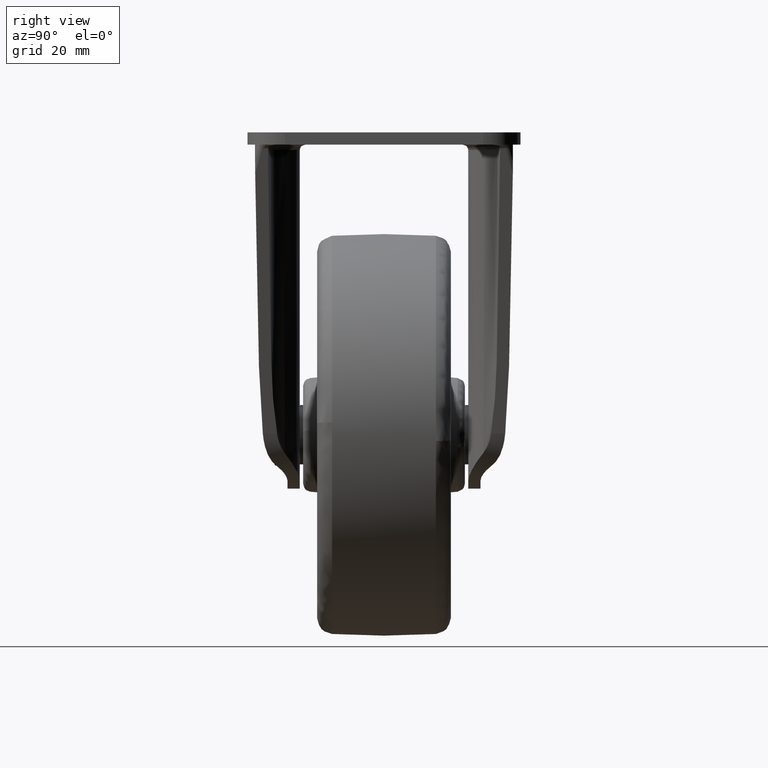
[diagram: clean part render]
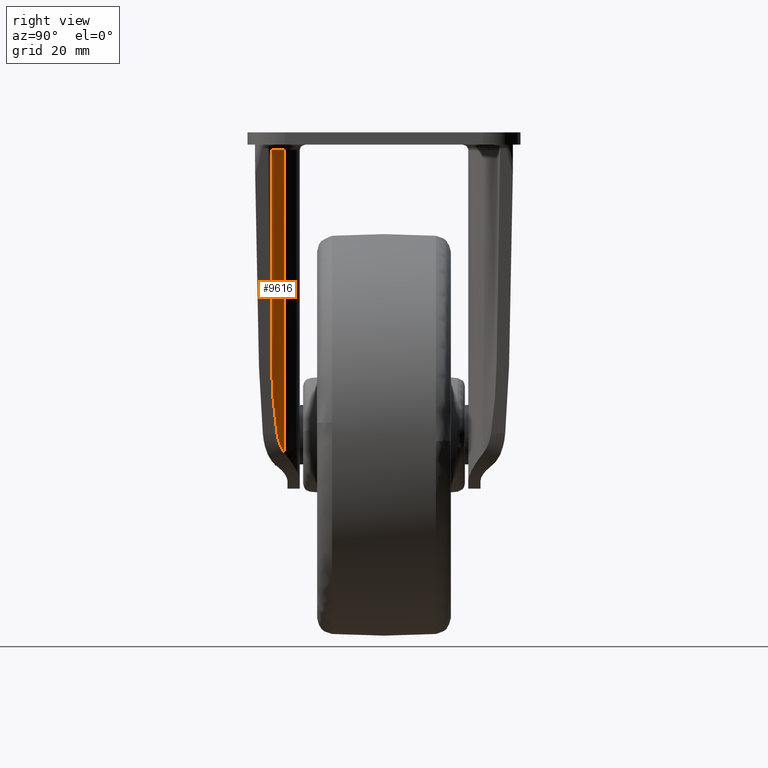
[diagram: same view with one face highlighted and labeled with its STEP entity id]
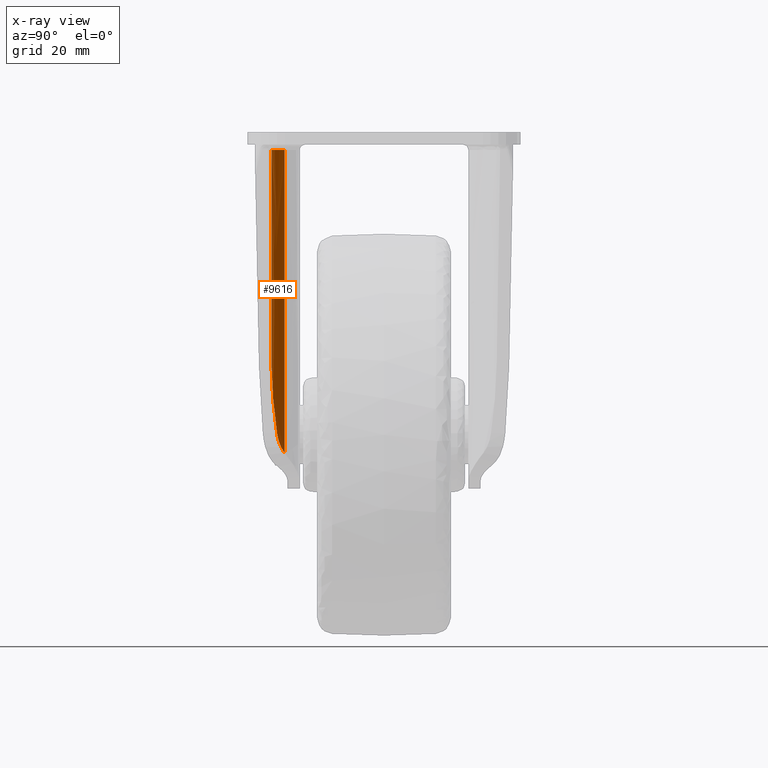
[diagram: x-ray of the same camera — body ghosted, the highlighted face saturated]
A machine part, right view. The second image highlights one B-rep face of the part: STEP entity #9616.
The next image is the same camera in x-ray: the body ghosted, the highlighted face saturated — about 0% of this face is hidden behind the body in this view.
In plain terms, the highlighted face is a freeform B-spline surface patch.
Its self-contained STEP definition (entity closure, byte-faithful):
#8025=CARTESIAN_POINT('',(11.351696789401281,-18.559973133057149,-3.300000000000000));
#8026=VERTEX_POINT('',#8025);
#8089=CARTESIAN_POINT('',(15.571389632507900,-21.067994115533299,-3.300000000000080));
#8090=VERTEX_POINT('',#8089);
#8123=CARTESIAN_POINT('',(11.351696789401270,-18.559973133057149,-3.300000000000000));
#8124=CARTESIAN_POINT('',(12.874182778205196,-20.802205266663485,-3.300000000000000));
#8125=CARTESIAN_POINT('',(15.571389632507900,-21.067994115533299,-3.300000000000080));
#8133=(BOUNDED_CURVE()B_SPLINE_CURVE(2,(#8123,#8124,#8125),.UNSPECIFIED.,.F.,.U.)CURVE()GEOMETRIC_REPRESENTATION_ITEM()QUASI_UNIFORM_CURVE()RATIONAL_B_SPLINE_CURVE((1.0,0.905585721787063,1.0))REPRESENTATION_ITEM(''));
#8134=EDGE_CURVE('',#8026,#8090,#8133,.T.);
#9210=CARTESIAN_POINT('',(12.723144108426000,-19.980183923574401,-56.218632483061398));
#9211=VERTEX_POINT('',#9210);
#9217=CARTESIAN_POINT('',(15.571389632507900,-21.067994115533299,-42.639158120802449));
#9218=VERTEX_POINT('',#9217);
#9219=CARTESIAN_POINT('',(12.723144108425950,-19.980183923574369,-56.218632483061413));
#9220=CARTESIAN_POINT('',(13.998725142697195,-20.913020208456579,-50.137092178542446));
#9221=CARTESIAN_POINT('',(15.571389632507900,-21.067994115533299,-42.639158120802449));
#9229=(BOUNDED_CURVE()B_SPLINE_CURVE(2,(#9219,#9220,#9221),.UNSPECIFIED.,.F.,.U.)CURVE()GEOMETRIC_REPRESENTATION_ITEM()QUASI_UNIFORM_CURVE()RATIONAL_B_SPLINE_CURVE((1.0,0.964671928667058,1.0))REPRESENTATION_ITEM(''));
#9230=EDGE_CURVE('',#9211,#9218,#9229,.T.);
#9333=CARTESIAN_POINT('',(11.351697890259061,-18.559972385569651,-59.885530280055313));
#9334=VERTEX_POINT('',#9333);
#9362=CARTESIAN_POINT('',(11.351697890259061,-18.559972385569651,-59.885530280055313));
#9363=CARTESIAN_POINT('',(11.490600934891610,-18.764541124871979,-59.636650579441927));
#9364=CARTESIAN_POINT('',(11.629913658600360,-18.941910098012031,-59.367716740033707));
#9365=CARTESIAN_POINT('',(11.798688382767001,-19.136773728423329,-59.008684821643122));
#9366=CARTESIAN_POINT('',(11.832236978604669,-19.174450588794642,-58.935598493782912));
#9367=CARTESIAN_POINT('',(11.898178704198511,-19.246689666673181,-58.788305734395443));
#9368=CARTESIAN_POINT('',(11.930621815659579,-19.281313115170828,-58.713999265190623));
#9369=CARTESIAN_POINT('',(12.026265411890961,-19.381046670882121,-58.489176425332218));
#9370=CARTESIAN_POINT('',(12.087777728492840,-19.442031554926931,-58.336759476606566));
#9371=CARTESIAN_POINT('',(12.264854033481731,-19.610790142107991,-57.872397754249342));
#9372=CARTESIAN_POINT('',(12.372940865698050,-19.704482739683861,-57.553373111335183));
#9373=CARTESIAN_POINT('',(12.517807233870551,-19.823288811842399,-57.061931667116802));
#9374=CARTESIAN_POINT('',(12.563224092183409,-19.859236342909789,-56.895958632732253));
#9375=CARTESIAN_POINT('',(12.647966375792951,-19.924576468869031,-56.559814845164567));
#9376=CARTESIAN_POINT('',(12.687257632098040,-19.953939952681250,-56.389727166137838));
#9377=CARTESIAN_POINT('',(12.723144108426000,-19.980183923574401,-56.218632483061398));
#9378=B_SPLINE_CURVE_WITH_KNOTS('',3,(#9362,#9363,#9364,#9365,#9366,#9367,#9368,#9369,#9370,#9371,#9372,#9373,#9374,#9375,#9376,#9377),.UNSPECIFIED.,.F.,.U.,(4,2,2,2,2,2,2,4),(0.0,0.250000000000007,0.312500000000006,0.375000000000005,0.500000000000003,0.749999999999999,0.875000000000000,1.0),.UNSPECIFIED.);
#9379=EDGE_CURVE('',#9334,#9211,#9378,.T.);
#9582=CARTESIAN_POINT('',(11.351697890259061,-18.559972385569651,-59.885530280055313));
#9583=CARTESIAN_POINT('',(11.351696789401281,-18.559973133057149,-3.300000000000000));
#9584=QUASI_UNIFORM_CURVE('',1,(#9582,#9583),.UNSPECIFIED.,.F.,.U.);
#9585=EDGE_CURVE('',#9334,#8026,#9584,.T.);
#9591=CARTESIAN_POINT('',(15.814253760482430,-21.086774501869705,-61.300168537056685));
#9592=CARTESIAN_POINT('',(15.814253760482430,-21.086774501869705,-1.849995786573579));
#9593=CARTESIAN_POINT('',(12.805012711239977,-20.917702521194624,-61.300168537056692));
#9594=CARTESIAN_POINT('',(12.805012711239977,-20.917702521194624,-1.849995786573579));
#9595=CARTESIAN_POINT('',(11.218713646729665,-18.354935987733374,-61.300168537056692));
#9596=CARTESIAN_POINT('',(11.218713646729665,-18.354935987733374,-1.849995786573579));
#9604=(BOUNDED_SURFACE()B_SPLINE_SURFACE(1,2,((#9591,#9593,#9595),(#9592,#9594,#9596)),.UNSPECIFIED.,.F.,.F.,.U.)B_SPLINE_SURFACE_WITH_KNOTS((2,2),(3,3),(0.0,59.450172750483112),(0.0,5.666653614815152),.UNSPECIFIED.)GEOMETRIC_REPRESENTATION_ITEM()RATIONAL_B_SPLINE_SURFACE(((0.999618390021001,0.885053335893106,0.996221248780699),(0.999618390021001,0.885053335893106,0.996221248780699)))REPRESENTATION_ITEM('')SURFACE());
#9605=ORIENTED_EDGE('',*,*,#9585,.T.);
#9606=ORIENTED_EDGE('',*,*,#8134,.T.);
#9607=CARTESIAN_POINT('',(15.571389632507900,-21.067994115533299,-42.639158120802449));
#9608=CARTESIAN_POINT('',(15.571389632507900,-21.067994115533299,-3.300000000000080));
#9609=QUASI_UNIFORM_CURVE('',1,(#9607,#9608),.UNSPECIFIED.,.F.,.U.);
#9610=EDGE_CURVE('',#9218,#8090,#9609,.T.);
#9611=ORIENTED_EDGE('',*,*,#9610,.F.);
#9612=ORIENTED_EDGE('',*,*,#9230,.F.);
#9613=ORIENTED_EDGE('',*,*,#9379,.F.);
#9614=EDGE_LOOP('',(#9605,#9606,#9611,#9612,#9613));
#9615=FACE_OUTER_BOUND('',#9614,.T.);
#9616=ADVANCED_FACE('',(#9615),#9604,.F.);